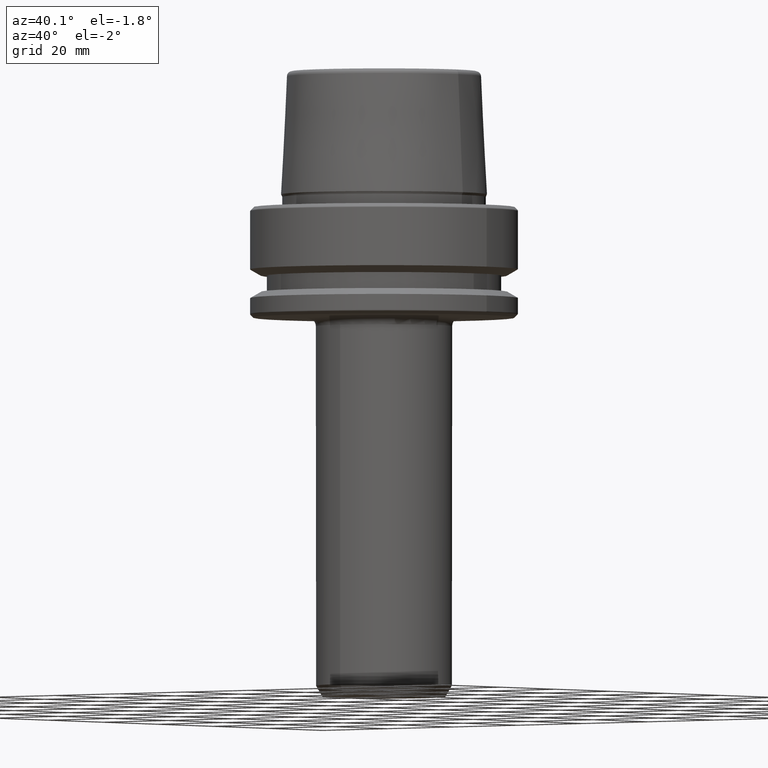
[diagram: clean part render]
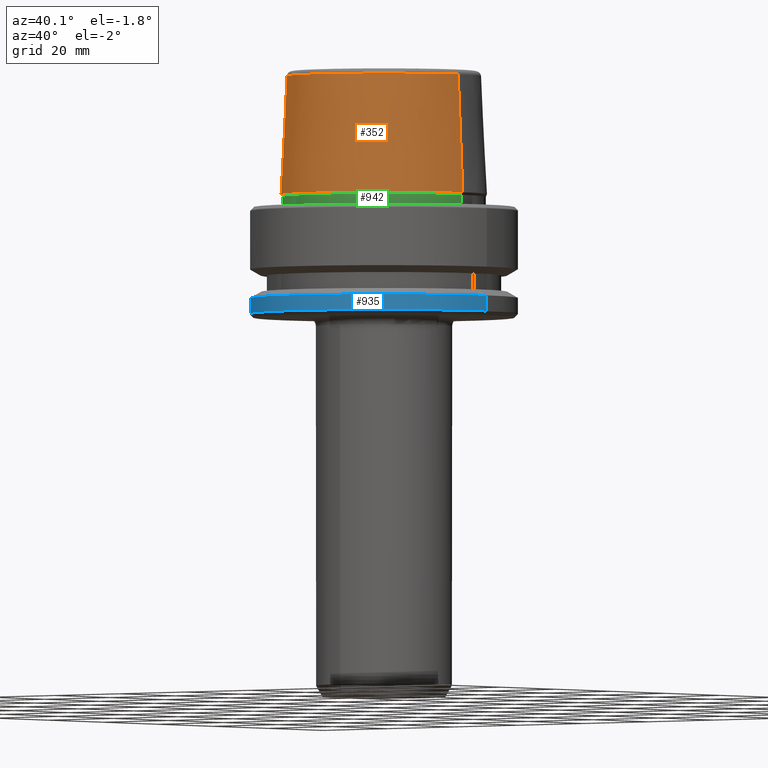
[diagram: same view with three faces highlighted in distinct colors, each labeled with its STEP entity id]
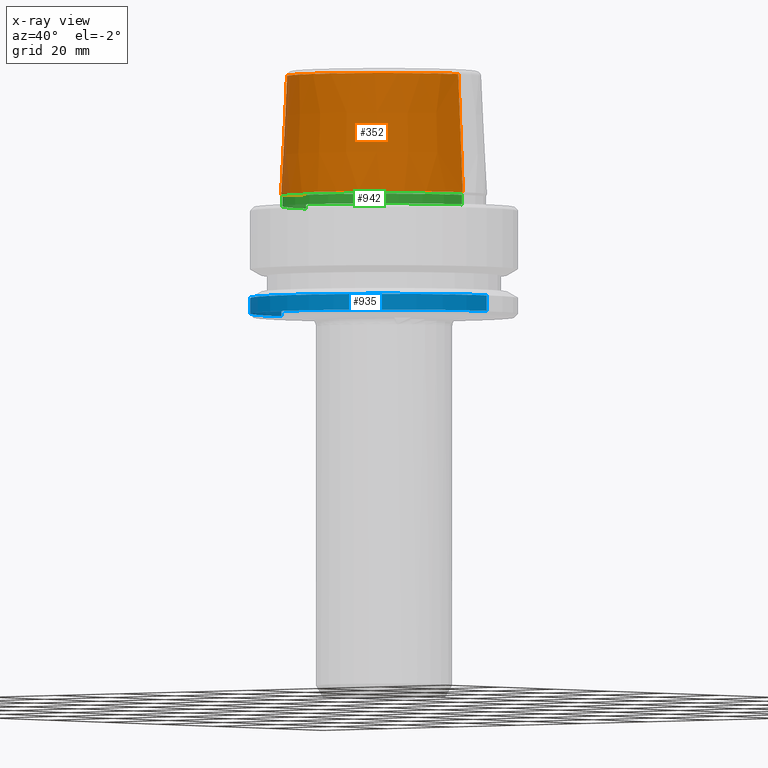
[diagram: x-ray of the same camera — body ghosted, the three highlighted faces saturated]
A machine part, auxiliary view with three faces highlighted in distinct colors.
The next image is the same camera in x-ray (body ghosted, the three faces saturated) — at least one of them is partly hidden behind the body in this view.
Their STEP definitions:

[orange] entity #352 — the highlighted conical surface has half-angle 2.868 deg.
#24 = ORIENTED_EDGE ( 'NONE', *, *, #265, .F. ) ;
#64 = DIRECTION ( 'NONE',  ( -1.000000000000000000, 0.0000000000000000000, 0.0000000000000000000 ) ) ;
#83 = AXIS2_PLACEMENT_3D ( 'NONE', #1064, #507, #379 ) ;
#119 = EDGE_LOOP ( 'NONE', ( #947, #24, #476, #964 ) ) ;
#127 = DIRECTION ( 'NONE',  ( -0.0000000000000000000, -0.0000000000000000000, 1.000000000000000000 ) ) ;
#161 = LINE ( 'NONE', #740, #423 ) ;
#265 = EDGE_CURVE ( 'NONE', #493, #1259, #1020, .T. ) ;
#325 = AXIS2_PLACEMENT_3D ( 'NONE', #830, #127, #721 ) ;
#352 = ADVANCED_FACE ( 'NONE', ( #547 ), #515, .T. ) ;
#379 = DIRECTION ( 'NONE',  ( 1.000000000000000000, 0.0000000000000000000, 0.0000000000000000000 ) ) ;
#411 = LINE ( 'NONE', #555, #1123 ) ;
#423 = VECTOR ( 'NONE', #640, 1000.000000000000200 ) ;
#472 = CARTESIAN_POINT ( 'NONE',  ( 24.17032625081241900, 0.0000000000000000000, 3.000000000000002700 ) ) ;
#476 = ORIENTED_EDGE ( 'NONE', *, *, #544, .T. ) ;
#493 = VERTEX_POINT ( 'NONE', #685 ) ;
#507 = DIRECTION ( 'NONE',  ( -0.0000000000000000000, -0.0000000000000000000, 1.000000000000000000 ) ) ;
#515 = CONICAL_SURFACE ( 'NONE', #997, 24.17032625081241900, 0.05005701257456005000 ) ;
#544 = EDGE_CURVE ( 'NONE', #493, #791, #161, .T. ) ;
#547 = FACE_OUTER_BOUND ( 'NONE', #119, .T. ) ;
#555 = CARTESIAN_POINT ( 'NONE',  ( 24.17032625081241900, 2.960011267740467600E-015, 3.000000000000002700 ) ) ;
#587 = CARTESIAN_POINT ( 'NONE',  ( 22.77957961851797100, 2.874852597157249900E-015, 30.76004333261571900 ) ) ;
#595 = DIRECTION ( 'NONE',  ( 0.0000000000000000000, 0.0000000000000000000, -1.000000000000000000 ) ) ;
#634 = CARTESIAN_POINT ( 'NONE',  ( 0.0000000000000000000, 0.0000000000000000000, 3.000000000000002700 ) ) ;
#640 = DIRECTION ( 'NONE',  ( -0.05003611051310812000, 0.0000000000000000000, -0.9987474093306675200 ) ) ;
#685 = CARTESIAN_POINT ( 'NONE',  ( -22.77957961851797100, 0.0000000000000000000, 30.76004333261571900 ) ) ;
#721 = DIRECTION ( 'NONE',  ( 1.000000000000000000, 0.0000000000000000000, 0.0000000000000000000 ) ) ;
#740 = CARTESIAN_POINT ( 'NONE',  ( -24.17032625081241900, 0.0000000000000000000, 3.000000000000002700 ) ) ;
#752 = CARTESIAN_POINT ( 'NONE',  ( -24.17032625081241900, 2.960011267740467600E-015, 3.000000000000002700 ) ) ;
#753 = VERTEX_POINT ( 'NONE', #472 ) ;
#791 = VERTEX_POINT ( 'NONE', #752 ) ;
#820 = EDGE_CURVE ( 'NONE', #1259, #753, #411, .T. ) ;
#830 = CARTESIAN_POINT ( 'NONE',  ( 0.0000000000000000000, 0.0000000000000000000, 3.000000000000002700 ) ) ;
#947 = ORIENTED_EDGE ( 'NONE', *, *, #820, .F. ) ;
#964 = ORIENTED_EDGE ( 'NONE', *, *, #987, .T. ) ;
#987 = EDGE_CURVE ( 'NONE', #791, #753, #1156, .T. ) ;
#997 = AXIS2_PLACEMENT_3D ( 'NONE', #634, #595, #64 ) ;
#1020 = CIRCLE ( 'NONE', #83, 22.77957961851797100 ) ;
#1064 = CARTESIAN_POINT ( 'NONE',  ( 0.0000000000000000000, 0.0000000000000000000, 30.76004333261571900 ) ) ;
#1123 = VECTOR ( 'NONE', #1155, 1000.000000000000200 ) ;
#1155 = DIRECTION ( 'NONE',  ( 0.05003611051310812000, 6.127656258166108900E-018, -0.9987474093306675200 ) ) ;
#1156 = CIRCLE ( 'NONE', #325, 24.17032625081241900 ) ;
#1259 = VERTEX_POINT ( 'NONE', #587 ) ;

[blue] entity #935 — the highlighted cylindrical surface (partial cylindrical patch) has radius 31.5 mm, axis along (-0, -0, 1).
#38 = DIRECTION ( 'NONE',  ( -0.0000000000000000000, -0.0000000000000000000, 1.000000000000000000 ) ) ;
#77 = CARTESIAN_POINT ( 'NONE',  ( 31.50000000000000000, 0.0000000000000000000, -21.37749907475931700 ) ) ;
#82 = AXIS2_PLACEMENT_3D ( 'NONE', #1239, #918, #1051 ) ;
#88 = EDGE_LOOP ( 'NONE', ( #907, #564, #259, #117 ) ) ;
#108 = VECTOR ( 'NONE', #813, 1000.000000000000000 ) ;
#117 = ORIENTED_EDGE ( 'NONE', *, *, #460, .F. ) ;
#126 = CIRCLE ( 'NONE', #509, 31.50000000000000000 ) ;
#143 = AXIS2_PLACEMENT_3D ( 'NONE', #251, #38, #633 ) ;
#232 = CARTESIAN_POINT ( 'NONE',  ( 31.50000000000000000, 0.0000000000000000000, 78.96908074195309300 ) ) ;
#251 = CARTESIAN_POINT ( 'NONE',  ( 0.0000000000000000000, 0.0000000000000000000, 78.96908074195309300 ) ) ;
#259 = ORIENTED_EDGE ( 'NONE', *, *, #462, .T. ) ;
#263 = DIRECTION ( 'NONE',  ( -0.0000000000000000000, -0.0000000000000000000, 1.000000000000000000 ) ) ;
#442 = DIRECTION ( 'NONE',  ( 1.000000000000000000, 0.0000000000000000000, 0.0000000000000000000 ) ) ;
#456 = EDGE_CURVE ( 'NONE', #598, #689, #126, .T. ) ;
#460 = EDGE_CURVE ( 'NONE', #1196, #738, #1267, .T. ) ;
#462 = EDGE_CURVE ( 'NONE', #689, #738, #804, .T. ) ;
#509 = AXIS2_PLACEMENT_3D ( 'NONE', #956, #797, #442 ) ;
#564 = ORIENTED_EDGE ( 'NONE', *, *, #456, .T. ) ;
#598 = VERTEX_POINT ( 'NONE', #1268 ) ;
#633 = DIRECTION ( 'NONE',  ( 1.000000000000000000, 0.0000000000000000000, 0.0000000000000000000 ) ) ;
#689 = VERTEX_POINT ( 'NONE', #1027 ) ;
#690 = CARTESIAN_POINT ( 'NONE',  ( -31.50000000000000000, 3.857637417314162700E-015, -21.37749907475931700 ) ) ;
#697 = CARTESIAN_POINT ( 'NONE',  ( -31.50000000000000000, 3.857637417314162700E-015, 78.96908074195309300 ) ) ;
#730 = EDGE_CURVE ( 'NONE', #598, #1196, #1159, .T. ) ;
#738 = VERTEX_POINT ( 'NONE', #77 ) ;
#797 = DIRECTION ( 'NONE',  ( -0.0000000000000000000, -0.0000000000000000000, 1.000000000000000000 ) ) ;
#804 = LINE ( 'NONE', #232, #1207 ) ;
#813 = DIRECTION ( 'NONE',  ( -0.0000000000000000000, -0.0000000000000000000, 1.000000000000000000 ) ) ;
#907 = ORIENTED_EDGE ( 'NONE', *, *, #730, .F. ) ;
#918 = DIRECTION ( 'NONE',  ( -0.0000000000000000000, -0.0000000000000000000, 1.000000000000000000 ) ) ;
#923 = CYLINDRICAL_SURFACE ( 'NONE', #143, 31.50000000000000000 ) ;
#935 = ADVANCED_FACE ( 'NONE', ( #959 ), #923, .T. ) ;
#956 = CARTESIAN_POINT ( 'NONE',  ( 0.0000000000000000000, 0.0000000000000000000, -25.03431457505077200 ) ) ;
#959 = FACE_OUTER_BOUND ( 'NONE', #88, .T. ) ;
#1027 = CARTESIAN_POINT ( 'NONE',  ( 31.50000000000000000, 0.0000000000000000000, -25.03431457505077200 ) ) ;
#1051 = DIRECTION ( 'NONE',  ( 1.000000000000000000, 0.0000000000000000000, 0.0000000000000000000 ) ) ;
#1159 = LINE ( 'NONE', #697, #108 ) ;
#1196 = VERTEX_POINT ( 'NONE', #690 ) ;
#1207 = VECTOR ( 'NONE', #263, 1000.000000000000000 ) ;
#1239 = CARTESIAN_POINT ( 'NONE',  ( 0.0000000000000000000, 0.0000000000000000000, -21.37749907475931700 ) ) ;
#1267 = CIRCLE ( 'NONE', #82, 31.50000000000000000 ) ;
#1268 = CARTESIAN_POINT ( 'NONE',  ( -31.50000000000000000, 3.857637417314161900E-015, -25.03431457505077200 ) ) ;

[green] entity #942 — the highlighted cylindrical surface (partial cylindrical patch) has radius 23.89 mm, axis along (-0, -0, 1).
#91 = DIRECTION ( 'NONE',  ( 1.000000000000000000, 0.0000000000000000000, 0.0000000000000000000 ) ) ;
#103 = CARTESIAN_POINT ( 'NONE',  ( 23.89000000000000100, 0.0000000000000000000, 2.398838415132276100 ) ) ;
#192 = CARTESIAN_POINT ( 'NONE',  ( -23.89000000000000400, 2.961613815265650600E-015, 0.1312552021302954000 ) ) ;
#206 = VERTEX_POINT ( 'NONE', #192 ) ;
#207 = EDGE_CURVE ( 'NONE', #641, #214, #312, .T. ) ;
#214 = VERTEX_POINT ( 'NONE', #103 ) ;
#234 = DIRECTION ( 'NONE',  ( -0.0000000000000000000, -0.0000000000000000000, 1.000000000000000000 ) ) ;
#312 = CIRCLE ( 'NONE', #491, 23.89000000000000100 ) ;
#314 = LINE ( 'NONE', #492, #911 ) ;
#328 = EDGE_CURVE ( 'NONE', #206, #969, #562, .T. ) ;
#330 = EDGE_CURVE ( 'NONE', #969, #214, #314, .T. ) ;
#391 = CYLINDRICAL_SURFACE ( 'NONE', #565, 23.89000000000000100 ) ;
#419 = FACE_OUTER_BOUND ( 'NONE', #1215, .T. ) ;
#429 = ORIENTED_EDGE ( 'NONE', *, *, #330, .T. ) ;
#468 = CARTESIAN_POINT ( 'NONE',  ( -23.89000000000000100, 2.942846235451747500E-015, 2.398838415132276100 ) ) ;
#479 = DIRECTION ( 'NONE',  ( -0.0000000000000000000, -0.0000000000000000000, 1.000000000000000000 ) ) ;
#491 = AXIS2_PLACEMENT_3D ( 'NONE', #976, #1015, #1083 ) ;
#492 = CARTESIAN_POINT ( 'NONE',  ( 23.89000000000000100, 0.0000000000000000000, 78.96908074195309300 ) ) ;
#521 = ORIENTED_EDGE ( 'NONE', *, *, #328, .T. ) ;
#531 = CARTESIAN_POINT ( 'NONE',  ( 23.89000000000000400, 0.0000000000000000000, 0.1312552021302954000 ) ) ;
#562 = CIRCLE ( 'NONE', #891, 23.89000000000000400 ) ;
#565 = AXIS2_PLACEMENT_3D ( 'NONE', #1226, #1133, #945 ) ;
#572 = CARTESIAN_POINT ( 'NONE',  ( -23.89000000000000100, 2.925681203163027000E-015, 78.96908074195309300 ) ) ;
#600 = VECTOR ( 'NONE', #479, 1000.000000000000000 ) ;
#641 = VERTEX_POINT ( 'NONE', #468 ) ;
#822 = ORIENTED_EDGE ( 'NONE', *, *, #207, .F. ) ;
#891 = AXIS2_PLACEMENT_3D ( 'NONE', #1032, #985, #91 ) ;
#911 = VECTOR ( 'NONE', #234, 1000.000000000000000 ) ;
#942 = ADVANCED_FACE ( 'NONE', ( #419 ), #391, .T. ) ;
#945 = DIRECTION ( 'NONE',  ( 1.000000000000000000, 0.0000000000000000000, 0.0000000000000000000 ) ) ;
#969 = VERTEX_POINT ( 'NONE', #531 ) ;
#976 = CARTESIAN_POINT ( 'NONE',  ( 0.0000000000000000000, 0.0000000000000000000, 2.398838415132276100 ) ) ;
#985 = DIRECTION ( 'NONE',  ( -0.0000000000000000000, -0.0000000000000000000, 1.000000000000000000 ) ) ;
#1015 = DIRECTION ( 'NONE',  ( -0.0000000000000000000, -0.0000000000000000000, 1.000000000000000000 ) ) ;
#1032 = CARTESIAN_POINT ( 'NONE',  ( 0.0000000000000000000, 0.0000000000000000000, 0.1312552021302954000 ) ) ;
#1083 = DIRECTION ( 'NONE',  ( 1.000000000000000000, 0.0000000000000000000, 0.0000000000000000000 ) ) ;
#1097 = ORIENTED_EDGE ( 'NONE', *, *, #1214, .F. ) ;
#1133 = DIRECTION ( 'NONE',  ( -0.0000000000000000000, -0.0000000000000000000, 1.000000000000000000 ) ) ;
#1137 = LINE ( 'NONE', #572, #600 ) ;
#1214 = EDGE_CURVE ( 'NONE', #206, #641, #1137, .T. ) ;
#1215 = EDGE_LOOP ( 'NONE', ( #1097, #521, #429, #822 ) ) ;
#1226 = CARTESIAN_POINT ( 'NONE',  ( 0.0000000000000000000, 0.0000000000000000000, 78.96908074195309300 ) ) ;